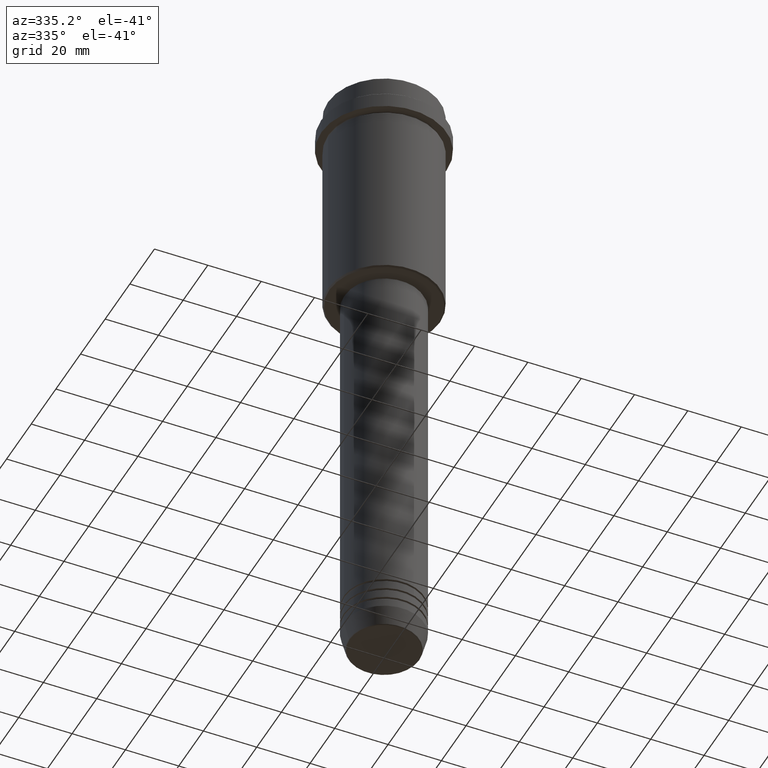
[diagram: clean part render]
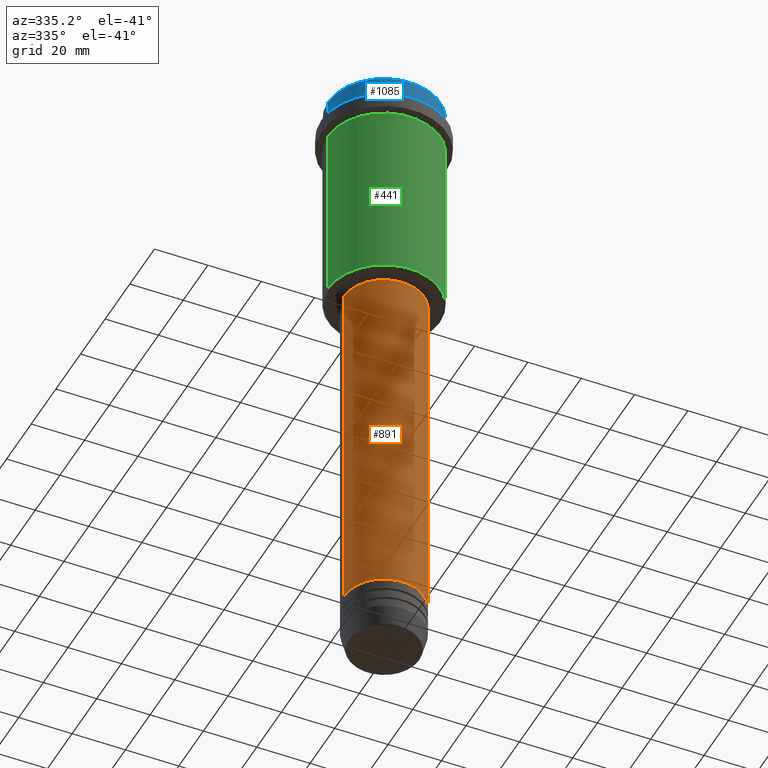
[diagram: same view with three faces highlighted in distinct colors, each labeled with its STEP entity id]
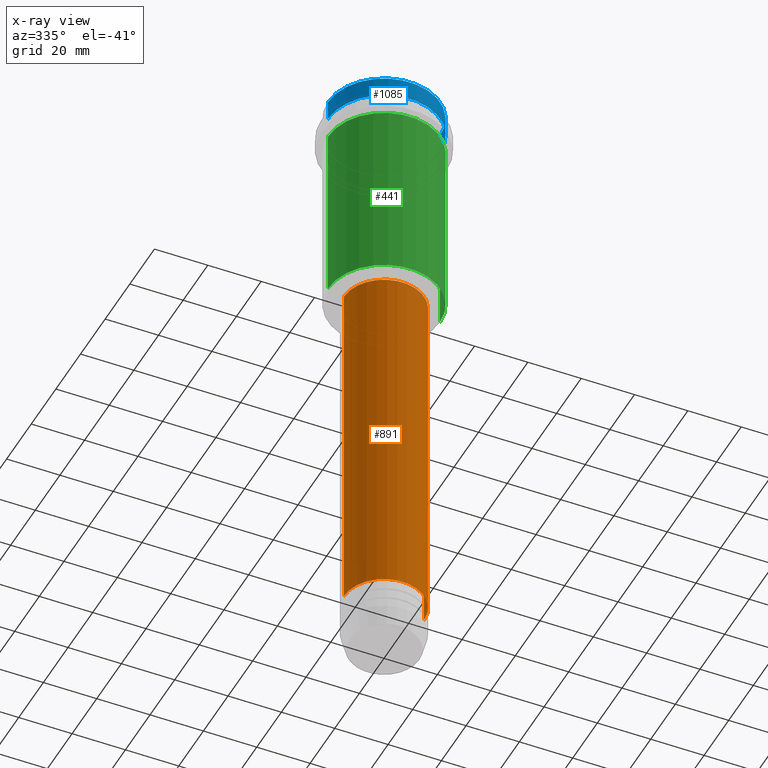
[diagram: x-ray of the same camera — body ghosted, the three highlighted faces saturated]
A machine part, auxiliary view with three faces highlighted in distinct colors.
The next image is the same camera in x-ray (body ghosted, the three faces saturated) — at least one of them is partly hidden behind the body in this view.
Their STEP definitions:

[orange] entity #891 — the highlighted cylindrical surface (partial cylindrical patch) has radius 15 mm, axis along (-0, -0, 1).
#20 = VECTOR ( 'NONE', #1400, 1000.000000000000000 ) ;
#26 = VERTEX_POINT ( 'NONE', #1075 ) ;
#31 = EDGE_CURVE ( 'NONE', #1264, #1252, #354, .T. ) ;
#77 = CARTESIAN_POINT ( 'NONE',  ( 0.000000000000000000, 0.000000000000000000, -86.00000000000000000 ) ) ;
#84 = CARTESIAN_POINT ( 'NONE',  ( 15.00000000000000000, 0.000000000000000000, 0.000000000000000000 ) ) ;
#118 = DIRECTION ( 'NONE',  ( -0.000000000000000000, -0.000000000000000000, 1.000000000000000000 ) ) ;
#219 = DIRECTION ( 'NONE',  ( 1.000000000000000000, 0.000000000000000000, 0.000000000000000000 ) ) ;
#245 = AXIS2_PLACEMENT_3D ( 'NONE', #77, #509, #939 ) ;
#344 = CARTESIAN_POINT ( 'NONE',  ( 0.000000000000000000, 0.000000000000000000, -220.9999999999998579 ) ) ;
#354 = CIRCLE ( 'NONE', #245, 15.00000000000000000 ) ;
#366 = EDGE_CURVE ( 'NONE', #950, #1252, #377, .T. ) ;
#372 = ORIENTED_EDGE ( 'NONE', *, *, #31, .F. ) ;
#377 = LINE ( 'NONE', #84, #20 ) ;
#403 = CARTESIAN_POINT ( 'NONE',  ( -15.00000000000000000, 1.836970198721029589E-15, -86.00000000000000000 ) ) ;
#509 = DIRECTION ( 'NONE',  ( -0.000000000000000000, -0.000000000000000000, 1.000000000000000000 ) ) ;
#538 = FACE_OUTER_BOUND ( 'NONE', #1128, .T. ) ;
#658 = CARTESIAN_POINT ( 'NONE',  ( 15.00000000000000000, 0.000000000000000000, -220.9999999999998579 ) ) ;
#665 = DIRECTION ( 'NONE',  ( -0.000000000000000000, -0.000000000000000000, 1.000000000000000000 ) ) ;
#701 = VECTOR ( 'NONE', #1072, 1000.000000000000000 ) ;
#748 = CARTESIAN_POINT ( 'NONE',  ( 15.00000000000000000, 0.000000000000000000, -86.00000000000000000 ) ) ;
#754 = DIRECTION ( 'NONE',  ( 1.000000000000000000, 0.000000000000000000, 0.000000000000000000 ) ) ;
#778 = CIRCLE ( 'NONE', #915, 15.00000000000000000 ) ;
#814 = ORIENTED_EDGE ( 'NONE', *, *, #1386, .T. ) ;
#829 = CARTESIAN_POINT ( 'NONE',  ( -15.00000000000000000, 1.836970198721029589E-15, 0.000000000000000000 ) ) ;
#848 = CARTESIAN_POINT ( 'NONE',  ( 0.000000000000000000, 0.000000000000000000, 0.000000000000000000 ) ) ;
#891 = ADVANCED_FACE ( 'NONE', ( #538 ), #1195, .T. ) ;
#915 = AXIS2_PLACEMENT_3D ( 'NONE', #344, #665, #219 ) ;
#939 = DIRECTION ( 'NONE',  ( 1.000000000000000000, 0.000000000000000000, 0.000000000000000000 ) ) ;
#950 = VERTEX_POINT ( 'NONE', #658 ) ;
#1072 = DIRECTION ( 'NONE',  ( -0.000000000000000000, -0.000000000000000000, 1.000000000000000000 ) ) ;
#1075 = CARTESIAN_POINT ( 'NONE',  ( -15.00000000000000000, 1.836970198721029589E-15, -220.9999999999998579 ) ) ;
#1124 = EDGE_CURVE ( 'NONE', #26, #1264, #1156, .T. ) ;
#1128 = EDGE_LOOP ( 'NONE', ( #1368, #814, #1236, #372 ) ) ;
#1156 = LINE ( 'NONE', #829, #701 ) ;
#1195 = CYLINDRICAL_SURFACE ( 'NONE', #1281, 15.00000000000000000 ) ;
#1236 = ORIENTED_EDGE ( 'NONE', *, *, #366, .T. ) ;
#1252 = VERTEX_POINT ( 'NONE', #748 ) ;
#1264 = VERTEX_POINT ( 'NONE', #403 ) ;
#1281 = AXIS2_PLACEMENT_3D ( 'NONE', #848, #118, #754 ) ;
#1368 = ORIENTED_EDGE ( 'NONE', *, *, #1124, .F. ) ;
#1386 = EDGE_CURVE ( 'NONE', #26, #950, #778, .T. ) ;
#1400 = DIRECTION ( 'NONE',  ( -0.000000000000000000, -0.000000000000000000, 1.000000000000000000 ) ) ;

[blue] entity #1085 — the highlighted cylindrical surface (partial cylindrical patch) has radius 21 mm, axis along (-0, -0, 1).
#7 = CARTESIAN_POINT ( 'NONE',  ( -21.00000000000000000, 2.571758278209441661E-15, 0.000000000000000000 ) ) ;
#29 = EDGE_CURVE ( 'NONE', #1263, #292, #428, .T. ) ;
#97 = CARTESIAN_POINT ( 'NONE',  ( 0.000000000000000000, 0.000000000000000000, -7.999999999999998224 ) ) ;
#100 = DIRECTION ( 'NONE',  ( -0.000000000000000000, -0.000000000000000000, 1.000000000000000000 ) ) ;
#110 = AXIS2_PLACEMENT_3D ( 'NONE', #97, #1187, #1044 ) ;
#183 = CARTESIAN_POINT ( 'NONE',  ( -21.00000000000000000, 2.571758278209441661E-15, -0.5000000000000663913 ) ) ;
#231 = VECTOR ( 'NONE', #100, 1000.000000000000000 ) ;
#234 = FACE_OUTER_BOUND ( 'NONE', #1019, .T. ) ;
#242 = DIRECTION ( 'NONE',  ( 1.000000000000000000, 0.000000000000000000, 0.000000000000000000 ) ) ;
#286 = CARTESIAN_POINT ( 'NONE',  ( 21.00000000000000000, 0.000000000000000000, -0.5000000000000663913 ) ) ;
#292 = VERTEX_POINT ( 'NONE', #1291 ) ;
#298 = DIRECTION ( 'NONE',  ( -0.000000000000000000, -0.000000000000000000, 1.000000000000000000 ) ) ;
#382 = EDGE_CURVE ( 'NONE', #292, #431, #387, .T. ) ;
#387 = LINE ( 'NONE', #1147, #728 ) ;
#428 = CIRCLE ( 'NONE', #110, 21.00000000000000000 ) ;
#431 = VERTEX_POINT ( 'NONE', #286 ) ;
#437 = ORIENTED_EDGE ( 'NONE', *, *, #987, .T. ) ;
#439 = DIRECTION ( 'NONE',  ( 1.000000000000000000, 0.000000000000000000, 0.000000000000000000 ) ) ;
#663 = DIRECTION ( 'NONE',  ( -0.000000000000000000, -0.000000000000000000, 1.000000000000000000 ) ) ;
#728 = VECTOR ( 'NONE', #298, 1000.000000000000000 ) ;
#760 = LINE ( 'NONE', #7, #231 ) ;
#776 = CARTESIAN_POINT ( 'NONE',  ( 0.000000000000000000, 0.000000000000000000, 0.000000000000000000 ) ) ;
#790 = CYLINDRICAL_SURFACE ( 'NONE', #999, 21.00000000000000000 ) ;
#842 = CIRCLE ( 'NONE', #1116, 21.00000000000000000 ) ;
#966 = CARTESIAN_POINT ( 'NONE',  ( 0.000000000000000000, 0.000000000000000000, -0.5000000000000663913 ) ) ;
#972 = EDGE_CURVE ( 'NONE', #1263, #1143, #760, .T. ) ;
#980 = DIRECTION ( 'NONE',  ( 0.000000000000000000, 0.000000000000000000, -1.000000000000000000 ) ) ;
#987 = EDGE_CURVE ( 'NONE', #431, #1143, #842, .T. ) ;
#999 = AXIS2_PLACEMENT_3D ( 'NONE', #776, #663, #242 ) ;
#1019 = EDGE_LOOP ( 'NONE', ( #1289, #1027, #1123, #437 ) ) ;
#1027 = ORIENTED_EDGE ( 'NONE', *, *, #29, .T. ) ;
#1044 = DIRECTION ( 'NONE',  ( 1.000000000000000000, 0.000000000000000000, 0.000000000000000000 ) ) ;
#1085 = ADVANCED_FACE ( 'NONE', ( #234 ), #790, .T. ) ;
#1116 = AXIS2_PLACEMENT_3D ( 'NONE', #966, #980, #439 ) ;
#1123 = ORIENTED_EDGE ( 'NONE', *, *, #382, .T. ) ;
#1143 = VERTEX_POINT ( 'NONE', #183 ) ;
#1147 = CARTESIAN_POINT ( 'NONE',  ( 21.00000000000000000, 0.000000000000000000, 0.000000000000000000 ) ) ;
#1187 = DIRECTION ( 'NONE',  ( -0.000000000000000000, -0.000000000000000000, 1.000000000000000000 ) ) ;
#1263 = VERTEX_POINT ( 'NONE', #1390 ) ;
#1289 = ORIENTED_EDGE ( 'NONE', *, *, #972, .F. ) ;
#1291 = CARTESIAN_POINT ( 'NONE',  ( 21.00000000000000000, 0.000000000000000000, -7.999999999999998224 ) ) ;
#1390 = CARTESIAN_POINT ( 'NONE',  ( -21.00000000000000000, 2.571758278209441661E-15, -7.999999999999998224 ) ) ;

[green] entity #441 — the highlighted cylindrical surface (partial cylindrical patch) has radius 21 mm, axis along (-0, -0, 1).
#14 = CARTESIAN_POINT ( 'NONE',  ( -21.00000000000000000, 2.571758278209441661E-15, -84.49999999999995737 ) ) ;
#61 = CARTESIAN_POINT ( 'NONE',  ( 21.00000000000000000, 0.000000000000000000, -84.49999999999995737 ) ) ;
#88 = VERTEX_POINT ( 'NONE', #1141 ) ;
#89 = AXIS2_PLACEMENT_3D ( 'NONE', #745, #986, #1181 ) ;
#112 = CYLINDRICAL_SURFACE ( 'NONE', #89, 21.00000000000000000 ) ;
#126 = ORIENTED_EDGE ( 'NONE', *, *, #875, .F. ) ;
#206 = EDGE_LOOP ( 'NONE', ( #126, #452, #389, #1407 ) ) ;
#228 = CIRCLE ( 'NONE', #1346, 21.00000000000000000 ) ;
#251 = VERTEX_POINT ( 'NONE', #61 ) ;
#334 = CARTESIAN_POINT ( 'NONE',  ( -21.00000000000000000, 2.571758278209441661E-15, -16.00000000000000355 ) ) ;
#347 = CARTESIAN_POINT ( 'NONE',  ( 0.000000000000000000, 0.000000000000000000, -16.00000000000000355 ) ) ;
#389 = ORIENTED_EDGE ( 'NONE', *, *, #466, .T. ) ;
#441 = ADVANCED_FACE ( 'NONE', ( #533 ), #112, .T. ) ;
#452 = ORIENTED_EDGE ( 'NONE', *, *, #514, .T. ) ;
#454 = DIRECTION ( 'NONE',  ( -0.000000000000000000, -0.000000000000000000, 1.000000000000000000 ) ) ;
#466 = EDGE_CURVE ( 'NONE', #251, #88, #539, .T. ) ;
#473 = VERTEX_POINT ( 'NONE', #14 ) ;
#494 = VERTEX_POINT ( 'NONE', #334 ) ;
#502 = VECTOR ( 'NONE', #1290, 1000.000000000000000 ) ;
#514 = EDGE_CURVE ( 'NONE', #473, #251, #1305, .T. ) ;
#533 = FACE_OUTER_BOUND ( 'NONE', #206, .T. ) ;
#539 = LINE ( 'NONE', #967, #1112 ) ;
#579 = EDGE_CURVE ( 'NONE', #494, #88, #228, .T. ) ;
#659 = DIRECTION ( 'NONE',  ( -0.000000000000000000, -0.000000000000000000, 1.000000000000000000 ) ) ;
#745 = CARTESIAN_POINT ( 'NONE',  ( 0.000000000000000000, 0.000000000000000000, 0.000000000000000000 ) ) ;
#875 = EDGE_CURVE ( 'NONE', #473, #494, #1296, .T. ) ;
#967 = CARTESIAN_POINT ( 'NONE',  ( 21.00000000000000000, 0.000000000000000000, 0.000000000000000000 ) ) ;
#986 = DIRECTION ( 'NONE',  ( -0.000000000000000000, -0.000000000000000000, 1.000000000000000000 ) ) ;
#991 = DIRECTION ( 'NONE',  ( 1.000000000000000000, 0.000000000000000000, 0.000000000000000000 ) ) ;
#1077 = CARTESIAN_POINT ( 'NONE',  ( -21.00000000000000000, 2.571758278209441661E-15, 0.000000000000000000 ) ) ;
#1089 = CARTESIAN_POINT ( 'NONE',  ( 0.000000000000000000, 0.000000000000000000, -84.49999999999995737 ) ) ;
#1112 = VECTOR ( 'NONE', #1200, 1000.000000000000000 ) ;
#1141 = CARTESIAN_POINT ( 'NONE',  ( 21.00000000000000000, 0.000000000000000000, -16.00000000000000355 ) ) ;
#1181 = DIRECTION ( 'NONE',  ( 1.000000000000000000, 0.000000000000000000, 0.000000000000000000 ) ) ;
#1200 = DIRECTION ( 'NONE',  ( -0.000000000000000000, -0.000000000000000000, 1.000000000000000000 ) ) ;
#1225 = AXIS2_PLACEMENT_3D ( 'NONE', #1089, #659, #1409 ) ;
#1290 = DIRECTION ( 'NONE',  ( -0.000000000000000000, -0.000000000000000000, 1.000000000000000000 ) ) ;
#1296 = LINE ( 'NONE', #1077, #502 ) ;
#1305 = CIRCLE ( 'NONE', #1225, 21.00000000000000000 ) ;
#1346 = AXIS2_PLACEMENT_3D ( 'NONE', #347, #454, #991 ) ;
#1407 = ORIENTED_EDGE ( 'NONE', *, *, #579, .F. ) ;
#1409 = DIRECTION ( 'NONE',  ( -1.000000000000000000, 0.000000000000000000, 0.000000000000000000 ) ) ;